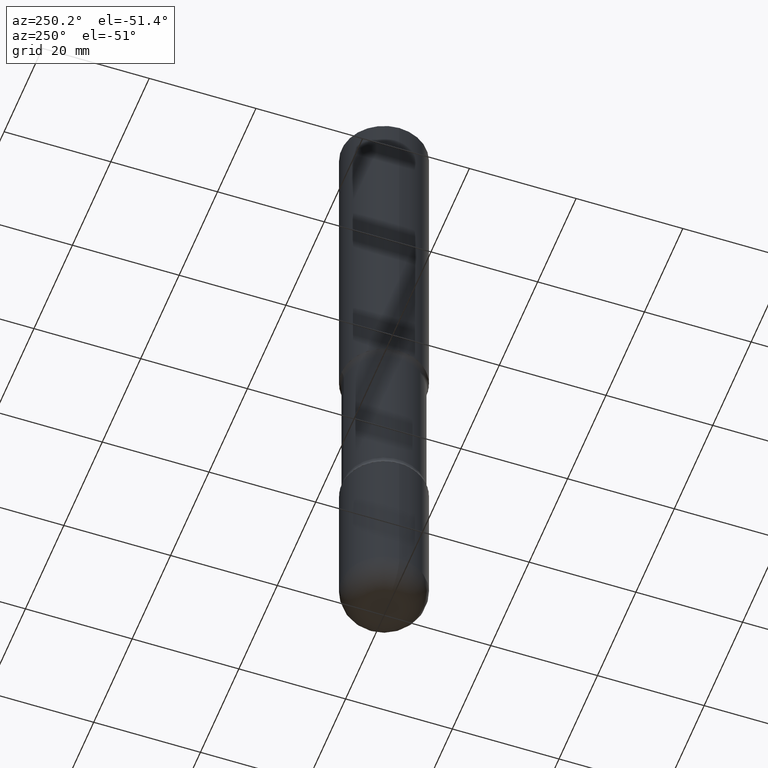
[diagram: clean part render]
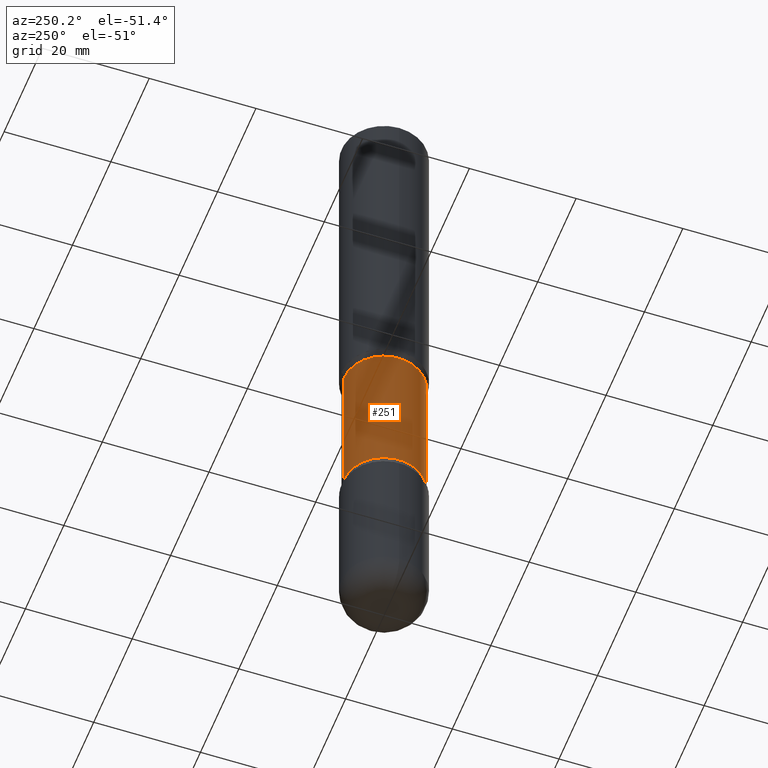
[diagram: same view with one face highlighted and labeled with its STEP entity id]
A machine part, auxiliary view. The second image highlights one B-rep face of the part: STEP entity #251.
In plain terms, the highlighted cylindrical surface (partial cylindrical patch) has radius 7.5406 mm, axis along (0, -0, -1).
Its self-contained STEP definition (entity closure, byte-faithful):
#1 = DIRECTION ( 'NONE',  ( 6.982962677686265133E-15, 1.000000000000000000, -3.680805717779217644E-15 ) ) ;
#5 = AXIS2_PLACEMENT_3D ( 'NONE', #223, #539, #451 ) ;
#27 = AXIS2_PLACEMENT_3D ( 'NONE', #356, #228, #179 ) ;
#69 = VERTEX_POINT ( 'NONE', #527 ) ;
#82 = CIRCLE ( 'NONE', #305, 0.2968750000000000000 ) ;
#90 = CARTESIAN_POINT ( 'NONE',  ( 2.073067044938233492E-15, 0.2968749999999827360, -5.000000000000000888 ) ) ;
#93 = CARTESIAN_POINT ( 'NONE',  ( -2.090307983695922804E-15, -0.2968750000000128786, -3.689484635215507069 ) ) ;
#107 = VERTEX_POINT ( 'NONE', #93 ) ;
#143 = CARTESIAN_POINT ( 'NONE',  ( 2.073067044938200360E-15, 0.2968749999999871214, -3.689484635215509289 ) ) ;
#179 = DIRECTION ( 'NONE',  ( 6.982962677686266711E-15, 1.000000000000000000, -3.680805717779217644E-15 ) ) ;
#220 = FACE_OUTER_BOUND ( 'NONE', #271, .T. ) ;
#223 = CARTESIAN_POINT ( 'NONE',  ( 1.232232987248685960E-28, -1.732138156284176685E-14, -5.000000000000000000 ) ) ;
#228 = DIRECTION ( 'NONE',  ( 2.521457479434076939E-29, -3.382661233743975076E-15, -1.000000000000000000 ) ) ;
#234 = VECTOR ( 'NONE', #309, 39.37007874015748143 ) ;
#246 = ORIENTED_EDGE ( 'NONE', *, *, #289, .F. ) ;
#250 = EDGE_CURVE ( 'NONE', #69, #290, #400, .T. ) ;
#251 = ADVANCED_FACE ( 'NONE', ( #220 ), #317, .T. ) ;
#271 = EDGE_LOOP ( 'NONE', ( #246, #333, #337, #277 ) ) ;
#277 = ORIENTED_EDGE ( 'NONE', *, *, #384, .F. ) ;
#289 = EDGE_CURVE ( 'NONE', #426, #107, #354, .T. ) ;
#290 = VERTEX_POINT ( 'NONE', #143 ) ;
#297 = CARTESIAN_POINT ( 'NONE',  ( 9.017921104037724021E-29, -1.288835204215942242E-14, -3.689484635215508401 ) ) ;
#305 = AXIS2_PLACEMENT_3D ( 'NONE', #297, #344, #1 ) ;
#309 = DIRECTION ( 'NONE',  ( 2.521457479434076939E-29, -3.382661233743974681E-15, -1.000000000000000000 ) ) ;
#311 = EDGE_CURVE ( 'NONE', #426, #69, #543, .T. ) ;
#317 = CYLINDRICAL_SURFACE ( 'NONE', #5, 0.2968750000000000000 ) ;
#333 = ORIENTED_EDGE ( 'NONE', *, *, #311, .T. ) ;
#337 = ORIENTED_EDGE ( 'NONE', *, *, #250, .T. ) ;
#344 = DIRECTION ( 'NONE',  ( 2.521457479434076939E-29, -3.382661233743975076E-15, -1.000000000000000000 ) ) ;
#354 = LINE ( 'NONE', #414, #436 ) ;
#356 = CARTESIAN_POINT ( 'NONE',  ( 6.171273093058203090E-29, -9.069431456984199816E-15, -2.560515364784490711 ) ) ;
#384 = EDGE_CURVE ( 'NONE', #107, #290, #82, .T. ) ;
#400 = LINE ( 'NONE', #90, #234 ) ;
#414 = CARTESIAN_POINT ( 'NONE',  ( -2.036710343088299976E-15, -0.2968750000000173195, -4.999999999999999112 ) ) ;
#426 = VERTEX_POINT ( 'NONE', #524 ) ;
#436 = VECTOR ( 'NONE', #537, 39.37007874015748143 ) ;
#451 = DIRECTION ( 'NONE',  ( 6.982962677686266711E-15, 1.000000000000000000, -3.680805717779217644E-15 ) ) ;
#524 = CARTESIAN_POINT ( 'NONE',  ( -2.090307983695953569E-15, -0.2968750000000091038, -2.560515364784489822 ) ) ;
#527 = CARTESIAN_POINT ( 'NONE',  ( 2.073067044938171961E-15, 0.2968749999999909517, -2.560515364784492043 ) ) ;
#537 = DIRECTION ( 'NONE',  ( 2.521457479434076939E-29, -3.382661233743974681E-15, -1.000000000000000000 ) ) ;
#539 = DIRECTION ( 'NONE',  ( 2.521457479434076939E-29, -3.382661233743975076E-15, -1.000000000000000000 ) ) ;
#543 = CIRCLE ( 'NONE', #27, 0.2968750000000000000 ) ;